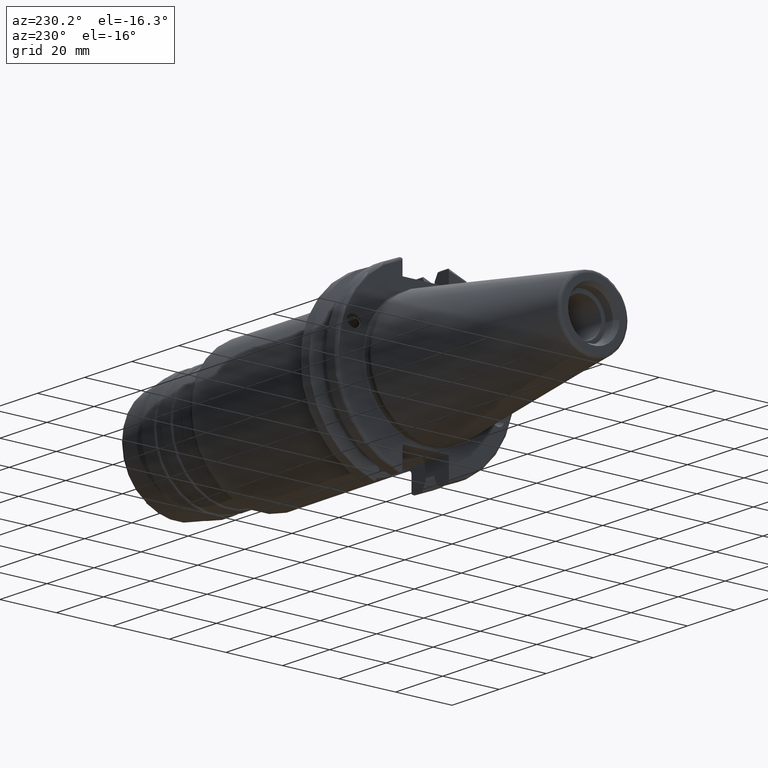
[diagram: clean part render]
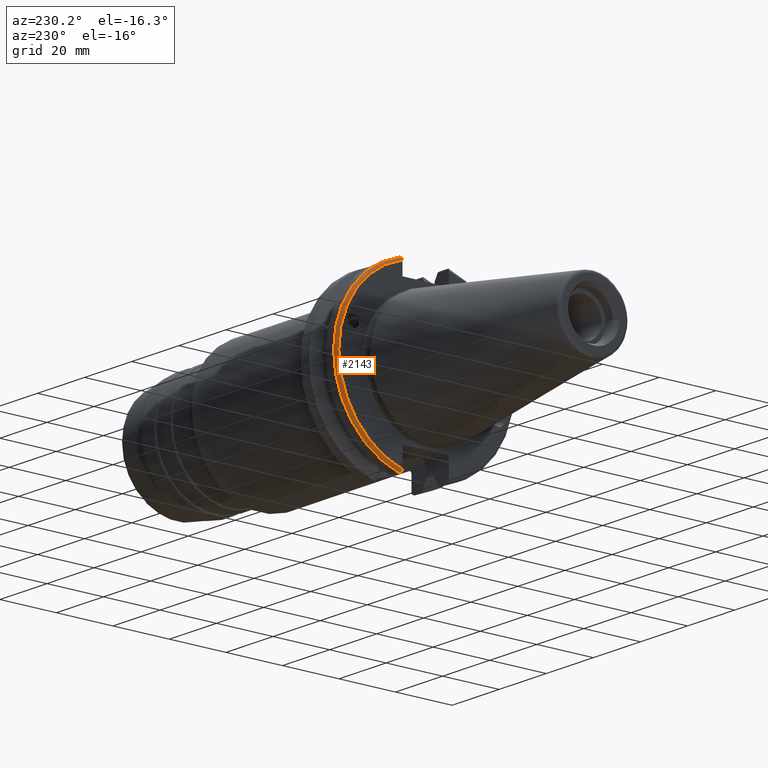
[diagram: same view with one face highlighted and labeled with its STEP entity id]
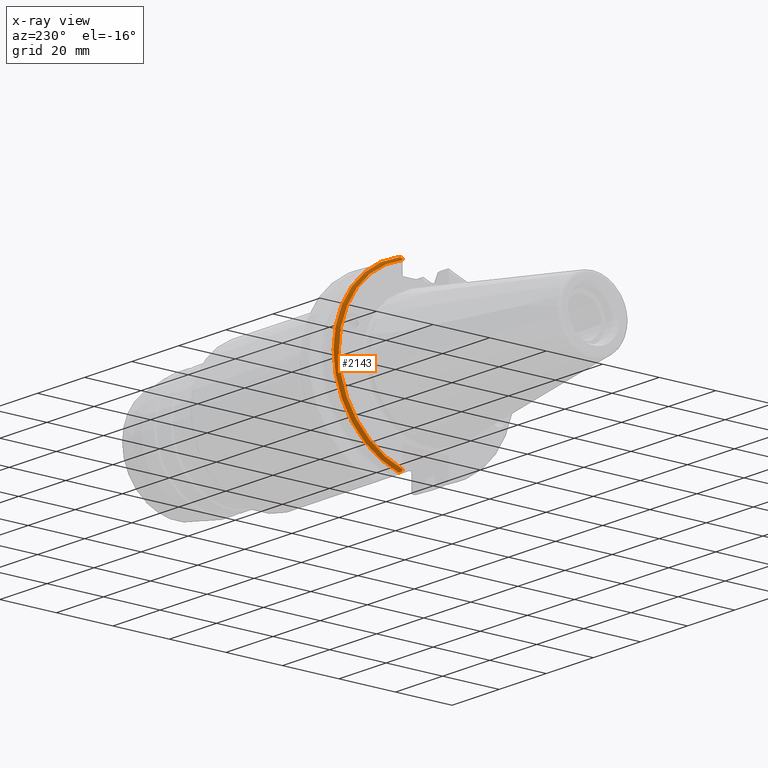
[diagram: x-ray of the same camera — body ghosted, the highlighted face saturated]
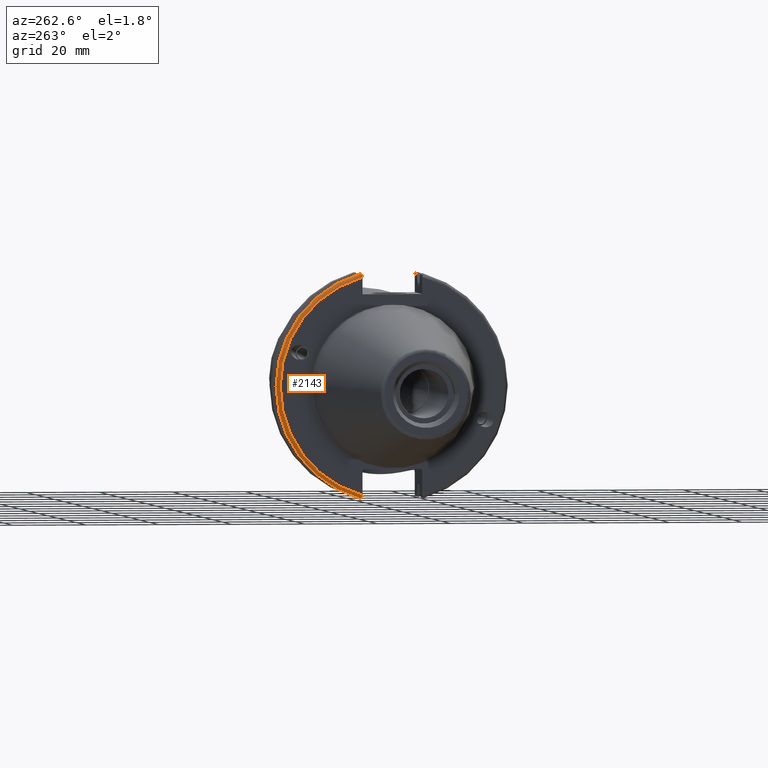
[diagram: same view with one face highlighted and labeled with its STEP entity id]
A machine part, auxiliary view. The second image highlights one B-rep face of the part: STEP entity #2143.
The next image is the same camera in x-ray: the body ghosted, the highlighted face saturated — about 0% of this face is hidden behind the body in this view.
A second angle (auxiliary view) of the same face is appended — the face is thin or edge-on in the first view.
In plain terms, the highlighted toroidal blend (fillet) surface has major radius 30.75 mm and minor (blend) radius 1 mm.
Its self-contained STEP definition (entity closure, byte-faithful):
#100=TOROIDAL_SURFACE('',#2440,30.75,1.);
#157=B_SPLINE_CURVE_WITH_KNOTS('',3,(#4005,#4006,#4007,#4008,#4009,#4010),
 .UNSPECIFIED.,.F.,.F.,(4,2,4),(0.452741154494498,0.491581665024872,0.505824174364157),
 .UNSPECIFIED.);
#166=B_SPLINE_CURVE_WITH_KNOTS('',3,(#4116,#4117,#4118,#4119,#4120,#4121,
#4122,#4123),.UNSPECIFIED.,.F.,.F.,(4,2,2,4),(-0.104180282751876,-0.072978474246144,
-0.0343524753874979,0.),.UNSPECIFIED.);
#167=B_SPLINE_CURVE_WITH_KNOTS('',3,(#4127,#4128,#4129,#4130,#4131,#4132,
#4133,#4134),.UNSPECIFIED.,.F.,.F.,(4,2,2,4),(0.,0.0343524753874975,0.0729784742461445,
0.104180282751877),.UNSPECIFIED.);
#168=B_SPLINE_CURVE_WITH_KNOTS('',3,(#4135,#4136,#4137,#4138,#4139,#4140),
 .UNSPECIFIED.,.F.,.F.,(4,2,4),(0.0977210450333169,0.111963554372601,0.150804064902975),
 .UNSPECIFIED.);
#244=FACE_OUTER_BOUND('',#362,.T.);
#362=EDGE_LOOP('',(#1871,#1872,#1873,#1874,#1875,#1876));
#731=CIRCLE('',#2425,30.75);
#737=CIRCLE('',#2441,31.75);
#953=VERTEX_POINT('',#3942);
#954=VERTEX_POINT('',#3944);
#967=VERTEX_POINT('',#4003);
#983=VERTEX_POINT('',#4115);
#984=VERTEX_POINT('',#4124);
#985=VERTEX_POINT('',#4126);
#1256=EDGE_CURVE('',#954,#953,#731,.T.);
#1274=EDGE_CURVE('',#953,#967,#157,.T.);
#1301=EDGE_CURVE('',#967,#983,#166,.T.);
#1302=EDGE_CURVE('',#983,#984,#737,.T.);
#1303=EDGE_CURVE('',#984,#985,#167,.T.);
#1304=EDGE_CURVE('',#985,#954,#168,.T.);
#1871=ORIENTED_EDGE('',*,*,#1301,.T.);
#1872=ORIENTED_EDGE('',*,*,#1302,.T.);
#1873=ORIENTED_EDGE('',*,*,#1303,.T.);
#1874=ORIENTED_EDGE('',*,*,#1304,.T.);
#1875=ORIENTED_EDGE('',*,*,#1256,.T.);
#1876=ORIENTED_EDGE('',*,*,#1274,.T.);
#2143=ADVANCED_FACE('',(#244),#100,.T.);
#2425=AXIS2_PLACEMENT_3D('',#3945,#3020,#3021);
#2440=AXIS2_PLACEMENT_3D('',#4114,#3071,#3072);
#2441=AXIS2_PLACEMENT_3D('',#4125,#3073,#3074);
#3020=DIRECTION('center_axis',(1.,0.,0.));
#3021=DIRECTION('ref_axis',(0.,1.,1.60812264967664E-16));
#3071=DIRECTION('center_axis',(1.,0.,0.));
#3072=DIRECTION('ref_axis',(0.,0.,-1.));
#3073=DIRECTION('center_axis',(-1.,0.,0.));
#3074=DIRECTION('ref_axis',(0.,1.,1.60812264967664E-16));
#3942=CARTESIAN_POINT('',(3.175,8.19,29.6392712461019));
#3944=CARTESIAN_POINT('',(3.175,8.18999999999999,-29.6392712461019));
#3945=CARTESIAN_POINT('Origin',(3.175,0.,0.));
#4003=CARTESIAN_POINT('',(3.31912772509028,8.19,30.1755016258903));
#4005=CARTESIAN_POINT('Ctrl Pts',(3.175,8.19,29.6392712461018));
#4006=CARTESIAN_POINT('Ctrl Pts',(3.175,8.19,29.7687396145364));
#4007=CARTESIAN_POINT('Ctrl Pts',(3.20451443291695,8.19,29.9212724384851));
#4008=CARTESIAN_POINT('Ctrl Pts',(3.27103565282437,8.19,30.0852355256475));
#4009=CARTESIAN_POINT('Ctrl Pts',(3.29318362718666,8.19,30.131014531546));
#4010=CARTESIAN_POINT('Ctrl Pts',(3.31912772509028,8.19,30.1755016258903));
#4114=CARTESIAN_POINT('Origin',(4.175,0.,0.));
#4115=CARTESIAN_POINT('',(4.175,8.67204822802685,30.5427254764662));
#4116=CARTESIAN_POINT('Ctrl Pts',(3.31912772509028,8.19,30.1755016258903));
#4117=CARTESIAN_POINT('Ctrl Pts',(3.36755369570114,8.2703682833078,30.2367261024977));
#4118=CARTESIAN_POINT('Ctrl Pts',(3.43232973376814,8.34909446036477,30.2966996242308));
#4119=CARTESIAN_POINT('Ctrl Pts',(3.58532758094931,8.48862804755884,30.4029961692546));
#4120=CARTESIAN_POINT('Ctrl Pts',(3.70655857052286,8.56482138642532,30.4610401774263));
#4121=CARTESIAN_POINT('Ctrl Pts',(3.92668295662254,8.6471881193939,30.5237870709558));
#4122=CARTESIAN_POINT('Ctrl Pts',(4.06049174870834,8.67204822802686,30.5427254764662));
#4123=CARTESIAN_POINT('Ctrl Pts',(4.175,8.67204822802686,30.5427254764662));
#4124=CARTESIAN_POINT('',(4.175,8.67204822802685,-30.5427254764662));
#4125=CARTESIAN_POINT('Origin',(4.175,0.,0.));
#4126=CARTESIAN_POINT('',(3.31912772509028,8.19,-30.1755016258903));
#4127=CARTESIAN_POINT('Ctrl Pts',(4.175,8.67204822802685,-30.5427254764662));
#4128=CARTESIAN_POINT('Ctrl Pts',(4.06049174870834,8.67204822802685,-30.5427254764662));
#4129=CARTESIAN_POINT('Ctrl Pts',(3.92668295662254,8.6471881193939,-30.5237870709558));
#4130=CARTESIAN_POINT('Ctrl Pts',(3.70655857052286,8.56482138642533,-30.4610401774263));
#4131=CARTESIAN_POINT('Ctrl Pts',(3.58532758094931,8.48862804755884,-30.4029961692546));
#4132=CARTESIAN_POINT('Ctrl Pts',(3.43232973376814,8.34909446036477,-30.2966996242308));
#4133=CARTESIAN_POINT('Ctrl Pts',(3.36755369570113,8.2703682833078,-30.2367261024977));
#4134=CARTESIAN_POINT('Ctrl Pts',(3.31912772509028,8.18999999999999,-30.1755016258903));
#4135=CARTESIAN_POINT('Ctrl Pts',(3.31912772509028,8.19,-30.1755016258903));
#4136=CARTESIAN_POINT('Ctrl Pts',(3.29318362718666,8.19,-30.131014531546));
#4137=CARTESIAN_POINT('Ctrl Pts',(3.27103565282437,8.19,-30.0852355256475));
#4138=CARTESIAN_POINT('Ctrl Pts',(3.20451443291695,8.19,-29.9212724384851));
#4139=CARTESIAN_POINT('Ctrl Pts',(3.175,8.19,-29.7687396145364));
#4140=CARTESIAN_POINT('Ctrl Pts',(3.175,8.19,-29.6392712461019));